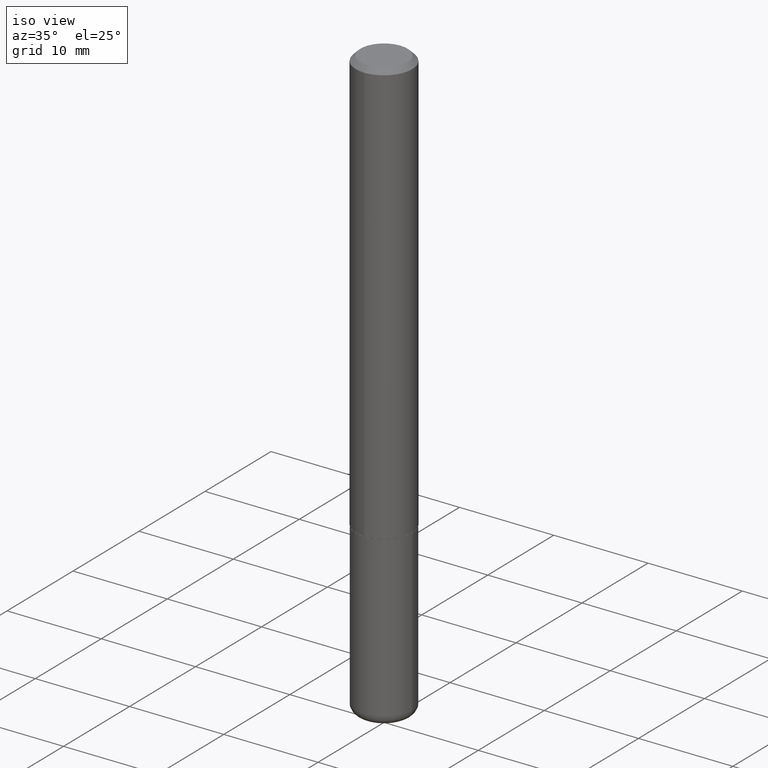
[diagram: clean part render]
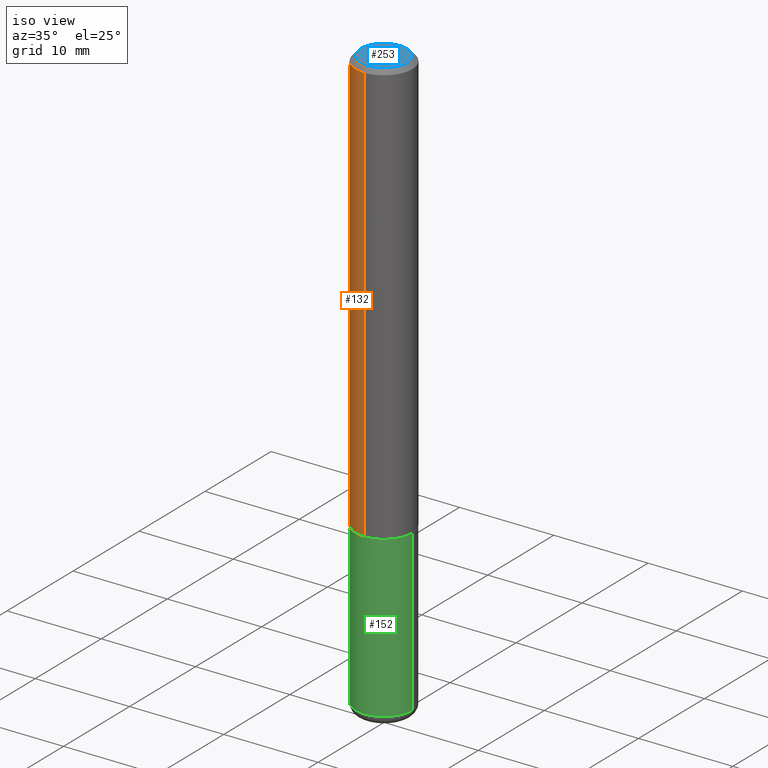
[diagram: same view with three faces highlighted in distinct colors, each labeled with its STEP entity id]
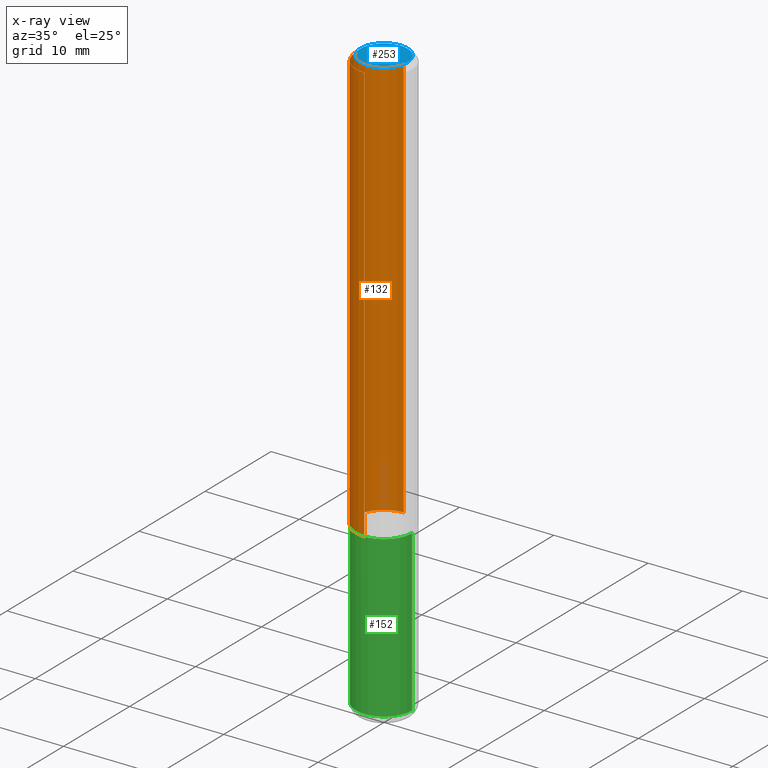
[diagram: x-ray of the same camera — body ghosted, the three highlighted faces saturated]
A machine part, iso view with three faces highlighted in distinct colors.
The next image is the same camera in x-ray (body ghosted, the three faces saturated) — at least one of them is partly hidden behind the body in this view.
Their STEP definitions:

[orange] entity #132 — the highlighted cylindrical surface (edge-blend (fillet) strip) has radius 2.9997 mm, axis along (-0, 0, 1).
#3 = VERTEX_POINT ( 'NONE', #37 ) ;
#10 = CARTESIAN_POINT ( 'NONE',  ( 8.391509709327014685E-16, 0.1180999999999940708, -1.770600000000000840 ) ) ;
#16 = AXIS2_PLACEMENT_3D ( 'NONE', #50, #158, #155 ) ;
#26 = DIRECTION ( 'NONE',  ( -2.443238767566187138E-29, 3.494674881071397310E-15, 1.000000000000000000 ) ) ;
#27 = ORIENTED_EDGE ( 'NONE', *, *, #284, .F. ) ;
#37 = CARTESIAN_POINT ( 'NONE',  ( -8.102248135368172434E-16, -0.1181000000000000660, -0.01999999999999962919 ) ) ;
#39 = CIRCLE ( 'NONE', #106, 0.1180999999999999966 ) ;
#46 = VECTOR ( 'NONE', #121, 39.37007874015748143 ) ;
#50 = CARTESIAN_POINT ( 'NONE',  ( 4.325998561852691348E-29, -6.187671344425017014E-15, -1.770600000000000174 ) ) ;
#82 = DIRECTION ( 'NONE',  ( -2.443238767566187138E-29, 3.494674881071396916E-15, 1.000000000000000000 ) ) ;
#86 = CARTESIAN_POINT ( 'NONE',  ( 8.391509709326790846E-16, 0.1181000000000001215, -4.127211034545323724E-16 ) ) ;
#100 = AXIS2_PLACEMENT_3D ( 'NONE', #175, #82, #261 ) ;
#102 = VERTEX_POINT ( 'NONE', #366 ) ;
#106 = AXIS2_PLACEMENT_3D ( 'NONE', #320, #181, #177 ) ;
#112 = EDGE_CURVE ( 'NONE', #102, #3, #185, .T. ) ;
#121 = DIRECTION ( 'NONE',  ( -2.443238767566187138E-29, 3.494674881071397310E-15, 1.000000000000000000 ) ) ;
#123 = FACE_OUTER_BOUND ( 'NONE', #167, .T. ) ;
#132 = ADVANCED_FACE ( 'NONE', ( #123 ), #200, .T. ) ;
#155 = DIRECTION ( 'NONE',  ( -6.982962677686265922E-15, -1.000000000000000000, 4.626330217890360659E-15 ) ) ;
#158 = DIRECTION ( 'NONE',  ( -2.443238767566187138E-29, 3.494674881071396916E-15, 1.000000000000000000 ) ) ;
#160 = CARTESIAN_POINT ( 'NONE',  ( 8.246878922347484598E-16, 0.1180999999999999273, -0.02000000000000045838 ) ) ;
#164 = EDGE_CURVE ( 'NONE', #415, #3, #39, .T. ) ;
#165 = VERTEX_POINT ( 'NONE', #10 ) ;
#167 = EDGE_LOOP ( 'NONE', ( #27, #281, #342, #225 ) ) ;
#175 = CARTESIAN_POINT ( 'NONE',  ( 0.000000000000000000, 0.000000000000000000, 0.000000000000000000 ) ) ;
#177 = DIRECTION ( 'NONE',  ( -6.982962677686265922E-15, -1.000000000000000000, 3.505890868245046092E-15 ) ) ;
#181 = DIRECTION ( 'NONE',  ( -2.443238767566187138E-29, 3.494674881071396916E-15, 1.000000000000000000 ) ) ;
#185 = LINE ( 'NONE', #274, #46 ) ;
#200 = CYLINDRICAL_SURFACE ( 'NONE', #100, 0.1181000000000001215 ) ;
#225 = ORIENTED_EDGE ( 'NONE', *, *, #164, .F. ) ;
#261 = DIRECTION ( 'NONE',  ( -6.982962677686265922E-15, -1.000000000000000000, 3.494674881071396522E-15 ) ) ;
#274 = CARTESIAN_POINT ( 'NONE',  ( -8.246878922347488542E-16, -0.1181000000000001215, 4.127211034545323724E-16 ) ) ;
#279 = LINE ( 'NONE', #86, #293 ) ;
#281 = ORIENTED_EDGE ( 'NONE', *, *, #290, .T. ) ;
#284 = EDGE_CURVE ( 'NONE', #165, #415, #279, .T. ) ;
#290 = EDGE_CURVE ( 'NONE', #165, #102, #394, .T. ) ;
#293 = VECTOR ( 'NONE', #26, 39.37007874015748143 ) ;
#320 = CARTESIAN_POINT ( 'NONE',  ( 4.886477535132384121E-31, -6.989349762142808870E-17, -0.02000000000000004205 ) ) ;
#342 = ORIENTED_EDGE ( 'NONE', *, *, #112, .T. ) ;
#366 = CARTESIAN_POINT ( 'NONE',  ( -8.246878922347063544E-16, -0.1181000000000064221, -1.770599999999999730 ) ) ;
#394 = CIRCLE ( 'NONE', #16, 0.1181000000000002326 ) ;
#415 = VERTEX_POINT ( 'NONE', #160 ) ;

[blue] entity #253 — the highlighted planar face has unit normal (0, -0, -1).
#14 = CARTESIAN_POINT ( 'NONE',  ( 6.850286386810209760E-16, 0.09809999999999975684, -2.124813316387448711E-16 ) ) ;
#18 = CARTESIAN_POINT ( 'NONE',  ( 7.548582654578847672E-16, 0.09809999999999975684, -8.213505744438662948E-17 ) ) ;
#20 = DIRECTION ( 'NONE',  ( 6.982962677686265922E-15, 1.000000000000000000, -3.494674881071397310E-15 ) ) ;
#25 = DIRECTION ( 'NONE',  ( -2.443238767566187138E-29, 3.494674881071396916E-15, 1.000000000000000000 ) ) ;
#122 = DIRECTION ( 'NONE',  ( -6.982962677686265922E-15, -1.000000000000000000, 3.494674881071397705E-15 ) ) ;
#124 = AXIS2_PLACEMENT_3D ( 'NONE', #310, #130, #122 ) ;
#130 = DIRECTION ( 'NONE',  ( -2.443238767566187138E-29, 3.494674881071396916E-15, 1.000000000000000000 ) ) ;
#131 = CIRCLE ( 'NONE', #124, 0.09809999999999975684 ) ;
#153 = CARTESIAN_POINT ( 'NONE',  ( -7.416198335591014190E-16, -0.09809999999999975684, 6.035201542218197439E-16 ) ) ;
#168 = EDGE_LOOP ( 'NONE', ( #353, #389 ) ) ;
#211 = DIRECTION ( 'NONE',  ( 2.443238767566186578E-29, -3.494674881071397310E-15, -1.000000000000000000 ) ) ;
#253 = ADVANCED_FACE ( 'NONE', ( #298 ), #329, .F. ) ;
#268 = AXIS2_PLACEMENT_3D ( 'NONE', #368, #25, #271 ) ;
#271 = DIRECTION ( 'NONE',  ( -6.982962677686265922E-15, -1.000000000000000000, 3.494674881071397705E-15 ) ) ;
#298 = FACE_OUTER_BOUND ( 'NONE', #168, .T. ) ;
#310 = CARTESIAN_POINT ( 'NONE',  ( -6.369341406389364514E-45, 9.110357005365375257E-31, 2.606925483887165818E-16 ) ) ;
#311 = EDGE_CURVE ( 'NONE', #360, #318, #405, .T. ) ;
#318 = VERTEX_POINT ( 'NONE', #18 ) ;
#329 = PLANE ( 'NONE',  #417 ) ;
#353 = ORIENTED_EDGE ( 'NONE', *, *, #379, .T. ) ;
#360 = VERTEX_POINT ( 'NONE', #153 ) ;
#368 = CARTESIAN_POINT ( 'NONE',  ( -6.369341406389364514E-45, 9.110357005365375257E-31, 2.606925483887165818E-16 ) ) ;
#379 = EDGE_CURVE ( 'NONE', #318, #360, #131, .T. ) ;
#389 = ORIENTED_EDGE ( 'NONE', *, *, #311, .T. ) ;
#405 = CIRCLE ( 'NONE', #268, 0.09809999999999975684 ) ;
#417 = AXIS2_PLACEMENT_3D ( 'NONE', #14, #211, #20 ) ;

[green] entity #152 — the highlighted cylindrical surface (edge-blend (fillet) strip) has radius 2.9997 mm, axis along (-0, 0, 1).
#29 = ORIENTED_EDGE ( 'NONE', *, *, #295, .T. ) ;
#32 = VECTOR ( 'NONE', #76, 39.37007874015748143 ) ;
#38 = EDGE_CURVE ( 'NONE', #99, #292, #113, .T. ) ;
#41 = CYLINDRICAL_SURFACE ( 'NONE', #141, 0.1180999999999999966 ) ;
#57 = CARTESIAN_POINT ( 'NONE',  ( 5.969144809017300159E-29, -8.522356799982234543E-15, -2.440900000000000070 ) ) ;
#70 = ORIENTED_EDGE ( 'NONE', *, *, #38, .T. ) ;
#76 = DIRECTION ( 'NONE',  ( -2.445468806185136877E-29, 3.491481338843145188E-15, 1.000000000000000000 ) ) ;
#84 = CARTESIAN_POINT ( 'NONE',  ( -0.1180999999999999966, 8.391509709326782957E-16, -5.809262341591043784E-30 ) ) ;
#89 = CARTESIAN_POINT ( 'NONE',  ( 0.1180999999999999966, -7.010196232129265043E-15, -1.771600000000000286 ) ) ;
#90 = EDGE_CURVE ( 'NONE', #138, #418, #154, .T. ) ;
#94 = VECTOR ( 'NONE', #151, 39.37007874015748143 ) ;
#99 = VERTEX_POINT ( 'NONE', #270 ) ;
#107 = CARTESIAN_POINT ( 'NONE',  ( 0.000000000000000000, 0.000000000000000000, 0.000000000000000000 ) ) ;
#111 = CARTESIAN_POINT ( 'NONE',  ( -0.1181000000000000383, -7.683205829049555557E-15, -2.440900000000000070 ) ) ;
#113 = LINE ( 'NONE', #235, #32 ) ;
#126 = DIRECTION ( 'NONE',  ( 1.000000000000000000, -6.982962677686265133E-15, 0.000000000000000000 ) ) ;
#138 = VERTEX_POINT ( 'NONE', #111 ) ;
#141 = AXIS2_PLACEMENT_3D ( 'NONE', #107, #269, #363 ) ;
#151 = DIRECTION ( 'NONE',  ( -2.445468806185136877E-29, 3.491481338843145188E-15, 1.000000000000000000 ) ) ;
#152 = ADVANCED_FACE ( 'NONE', ( #388 ), #41, .T. ) ;
#154 = LINE ( 'NONE', #84, #94 ) ;
#188 = DIRECTION ( 'NONE',  ( -2.445468806185136597E-29, 3.491481338843145583E-15, 1.000000000000000000 ) ) ;
#193 = AXIS2_PLACEMENT_3D ( 'NONE', #406, #188, #126 ) ;
#198 = EDGE_LOOP ( 'NONE', ( #348, #29, #70, #411 ) ) ;
#235 = CARTESIAN_POINT ( 'NONE',  ( 0.1180999999999999966, -8.246878922347480654E-16, 5.758764772215000440E-30 ) ) ;
#247 = CARTESIAN_POINT ( 'NONE',  ( -0.1180999999999999966, -6.514781599005697070E-15, -1.771600000000000286 ) ) ;
#252 = AXIS2_PLACEMENT_3D ( 'NONE', #57, #275, #371 ) ;
#269 = DIRECTION ( 'NONE',  ( -2.445468806185136597E-29, 3.491481338843145583E-15, 1.000000000000000000 ) ) ;
#270 = CARTESIAN_POINT ( 'NONE',  ( 0.1181000000000000383, -9.347044692216982806E-15, -2.440900000000000070 ) ) ;
#275 = DIRECTION ( 'NONE',  ( -2.445468806185136597E-29, 3.491481338843145583E-15, 1.000000000000000000 ) ) ;
#292 = VERTEX_POINT ( 'NONE', #89 ) ;
#295 = EDGE_CURVE ( 'NONE', #138, #99, #358, .T. ) ;
#347 = CIRCLE ( 'NONE', #193, 0.1180999999999999966 ) ;
#348 = ORIENTED_EDGE ( 'NONE', *, *, #90, .F. ) ;
#358 = CIRCLE ( 'NONE', #252, 0.1180999999999999966 ) ;
#363 = DIRECTION ( 'NONE',  ( 1.000000000000000000, -6.982962677686266711E-15, 4.876176775795936353E-29 ) ) ;
#371 = DIRECTION ( 'NONE',  ( 1.000000000000000000, -6.982962677686273021E-15, 0.000000000000000000 ) ) ;
#388 = FACE_OUTER_BOUND ( 'NONE', #198, .T. ) ;
#398 = EDGE_CURVE ( 'NONE', #418, #292, #347, .T. ) ;
#406 = CARTESIAN_POINT ( 'NONE',  ( 4.332392537037588763E-29, -6.185508339894517569E-15, -1.771600000000000286 ) ) ;
#411 = ORIENTED_EDGE ( 'NONE', *, *, #398, .F. ) ;
#418 = VERTEX_POINT ( 'NONE', #247 ) ;